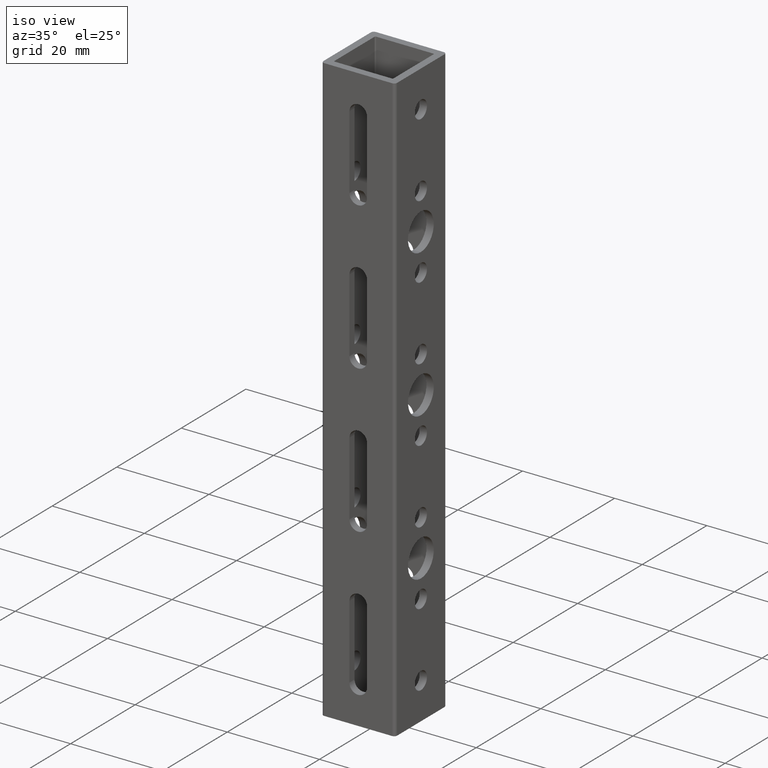
[diagram: clean part render]
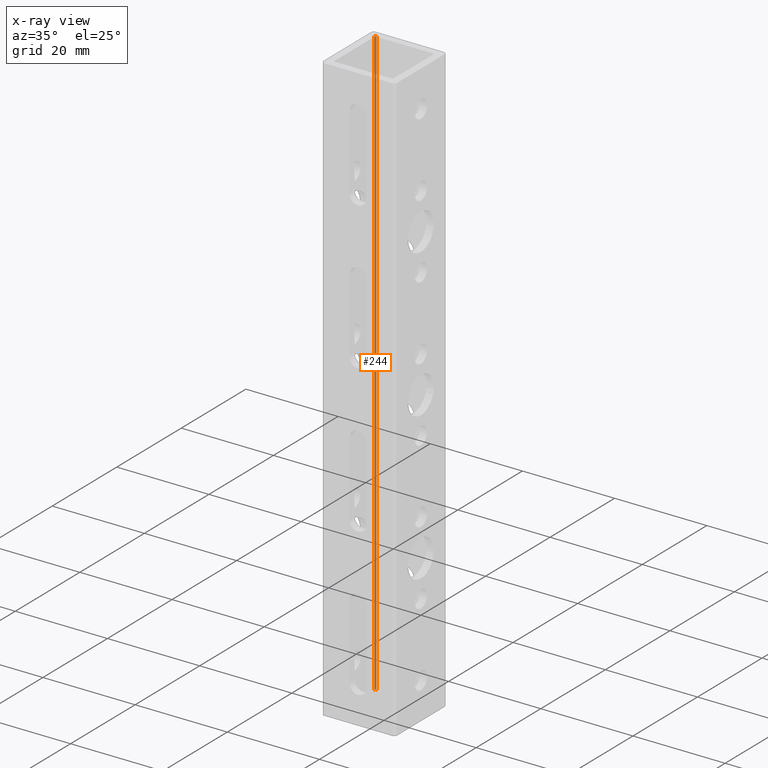
[diagram: x-ray — body ghosted, one internal face saturated and labeled with its STEP entity id]
A machine part, iso view, then the same camera in x-ray: the body is ghosted and one INTERNAL B-rep face — a face not visible from any outside direction — is saturated and labeled: STEP entity #244.
In plain terms, the highlighted cylindrical surface (edge-blend (fillet) strip) has radius 0.254 mm, axis along (-0, 0, 1).
Its self-contained STEP definition (entity closure, byte-faithful):
#58 = AXIS2_PLACEMENT_3D ( 'NONE', #674, #2349, #942 ) ;
#109 = CARTESIAN_POINT ( 'NONE',  ( -0.2424606299212599400, 0.2424606299212598800, 5.039370078740157400 ) ) ;
#133 = CARTESIAN_POINT ( 'NONE',  ( -0.2524606299212598900, 0.2424606299212598800, 5.039370078740157400 ) ) ;
#244 = ADVANCED_FACE ( 'NONE', ( #1969 ), #3372, .F. ) ;
#310 = CARTESIAN_POINT ( 'NONE',  ( -0.2524606299212598900, 0.2424606299212598800, 5.039370078740157400 ) ) ;
#420 = ORIENTED_EDGE ( 'NONE', *, *, #3354, .F. ) ;
#674 = CARTESIAN_POINT ( 'NONE',  ( -0.2424606299212599400, 0.2424606299212598800, 0.0000000000000000000 ) ) ;
#740 = CARTESIAN_POINT ( 'NONE',  ( -0.2424606299212599400, 0.2524606299212598900, 5.039370078740157400 ) ) ;
#763 = LINE ( 'NONE', #310, #2082 ) ;
#773 = DIRECTION ( 'NONE',  ( 1.000000000000000000, 0.0000000000000000000, 0.0000000000000000000 ) ) ;
#942 = DIRECTION ( 'NONE',  ( 1.000000000000000000, 0.0000000000000000000, 0.0000000000000000000 ) ) ;
#970 = ORIENTED_EDGE ( 'NONE', *, *, #973, .F. ) ;
#973 = EDGE_CURVE ( 'NONE', #1304, #1318, #2437, .T. ) ;
#1035 = DIRECTION ( 'NONE',  ( 0.0000000000000000000, 0.0000000000000000000, -1.000000000000000000 ) ) ;
#1039 = AXIS2_PLACEMENT_3D ( 'NONE', #2479, #2711, #773 ) ;
#1247 = DIRECTION ( 'NONE',  ( -0.0000000000000000000, -0.0000000000000000000, -1.000000000000000000 ) ) ;
#1279 = EDGE_CURVE ( 'NONE', #3257, #2027, #1733, .T. ) ;
#1304 = VERTEX_POINT ( 'NONE', #3220 ) ;
#1318 = VERTEX_POINT ( 'NONE', #1814 ) ;
#1356 = ORIENTED_EDGE ( 'NONE', *, *, #2292, .F. ) ;
#1458 = LINE ( 'NONE', #1875, #2861 ) ;
#1525 = DIRECTION ( 'NONE',  ( 1.000000000000000000, 0.0000000000000000000, 0.0000000000000000000 ) ) ;
#1733 = CIRCLE ( 'NONE', #3322, 0.009999999999999995000 ) ;
#1814 = CARTESIAN_POINT ( 'NONE',  ( -0.2524606299212598900, 0.2424606299212598800, 0.0000000000000000000 ) ) ;
#1875 = CARTESIAN_POINT ( 'NONE',  ( -0.2424606299212599400, 0.2524606299212598900, 0.0000000000000000000 ) ) ;
#1969 = FACE_OUTER_BOUND ( 'NONE', #3390, .T. ) ;
#1995 = DIRECTION ( 'NONE',  ( -0.0000000000000000000, 0.0000000000000000000, 1.000000000000000000 ) ) ;
#2027 = VERTEX_POINT ( 'NONE', #740 ) ;
#2082 = VECTOR ( 'NONE', #1995, 39.37007874015748100 ) ;
#2226 = ORIENTED_EDGE ( 'NONE', *, *, #1279, .F. ) ;
#2292 = EDGE_CURVE ( 'NONE', #1318, #3257, #763, .T. ) ;
#2349 = DIRECTION ( 'NONE',  ( 0.0000000000000000000, -0.0000000000000000000, 1.000000000000000000 ) ) ;
#2437 = CIRCLE ( 'NONE', #58, 0.009999999999999995000 ) ;
#2479 = CARTESIAN_POINT ( 'NONE',  ( -0.2424606299212599400, 0.2424606299212598800, 17.63779527559055200 ) ) ;
#2711 = DIRECTION ( 'NONE',  ( -0.0000000000000000000, 0.0000000000000000000, 1.000000000000000000 ) ) ;
#2861 = VECTOR ( 'NONE', #1035, 39.37007874015748100 ) ;
#3220 = CARTESIAN_POINT ( 'NONE',  ( -0.2424606299212599400, 0.2524606299212598900, 0.0000000000000000000 ) ) ;
#3257 = VERTEX_POINT ( 'NONE', #133 ) ;
#3322 = AXIS2_PLACEMENT_3D ( 'NONE', #109, #1247, #1525 ) ;
#3354 = EDGE_CURVE ( 'NONE', #2027, #1304, #1458, .T. ) ;
#3372 = CYLINDRICAL_SURFACE ( 'NONE', #1039, 0.009999999999999995000 ) ;
#3390 = EDGE_LOOP ( 'NONE', ( #2226, #1356, #970, #420 ) ) ;